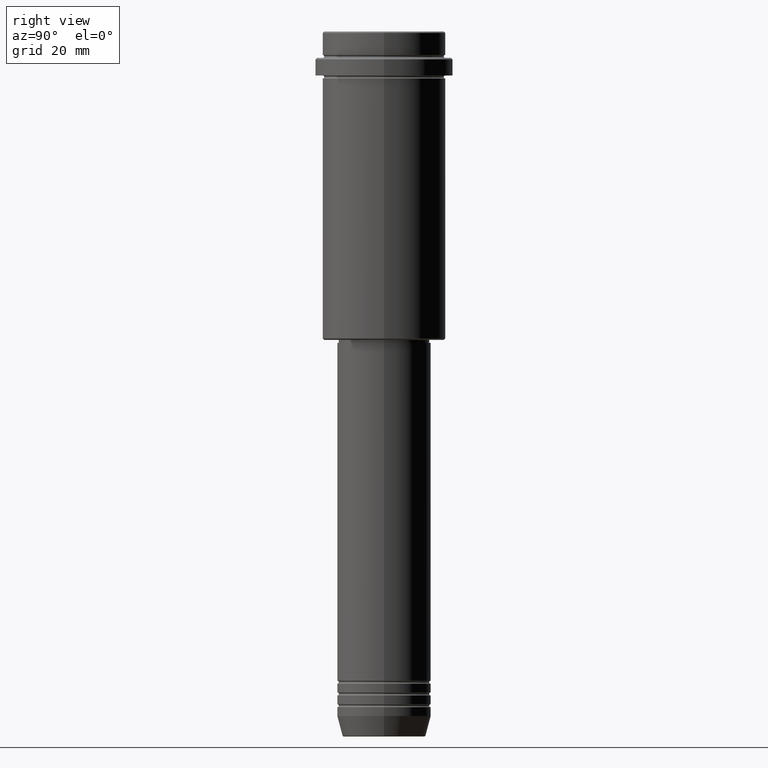
[diagram: clean part render]
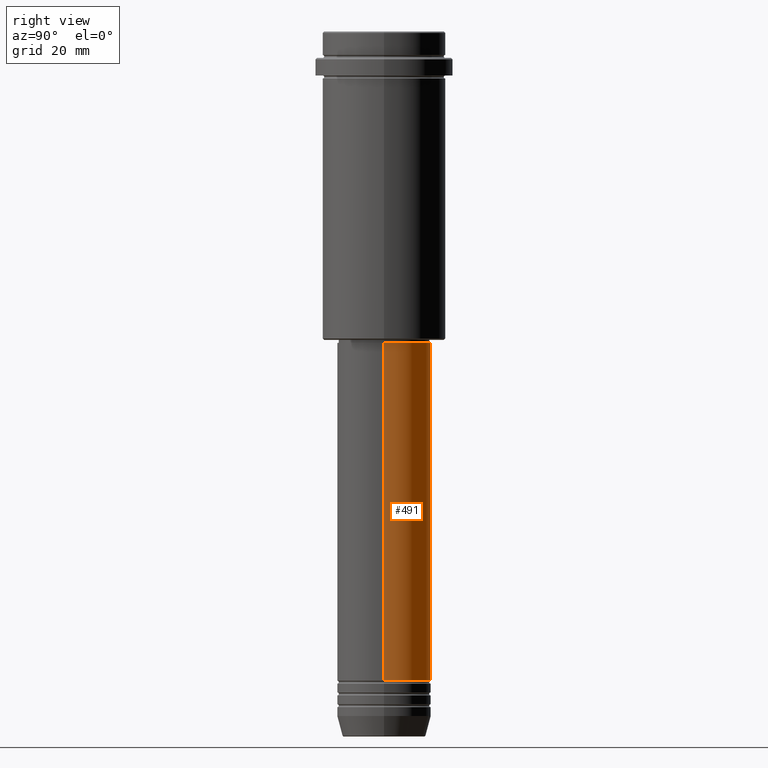
[diagram: same view with one face highlighted and labeled with its STEP entity id]
A machine part, right view. The second image highlights one B-rep face of the part: STEP entity #491.
In plain terms, the highlighted cylindrical surface (partial cylindrical patch) has radius 16 mm, axis along (-0, -0, 1).
Its self-contained STEP definition (entity closure, byte-faithful):
#23 = ORIENTED_EDGE ( 'NONE', *, *, #1107, .F. ) ;
#71 = VECTOR ( 'NONE', #544, 1000.000000000000000 ) ;
#76 = CARTESIAN_POINT ( 'NONE',  ( 16.00000000000000000, 0.000000000000000000, 0.000000000000000000 ) ) ;
#81 = CYLINDRICAL_SURFACE ( 'NONE', #949, 16.00000000000000000 ) ;
#82 = LINE ( 'NONE', #76, #1131 ) ;
#97 = CARTESIAN_POINT ( 'NONE',  ( -16.00000000000000000, 1.959434878635765131E-15, 0.000000000000000000 ) ) ;
#186 = AXIS2_PLACEMENT_3D ( 'NONE', #410, #838, #804 ) ;
#210 = DIRECTION ( 'NONE',  ( 1.000000000000000000, 0.000000000000000000, 0.000000000000000000 ) ) ;
#215 = DIRECTION ( 'NONE',  ( -0.000000000000000000, -0.000000000000000000, 1.000000000000000000 ) ) ;
#250 = EDGE_CURVE ( 'NONE', #640, #1078, #82, .T. ) ;
#263 = CARTESIAN_POINT ( 'NONE',  ( -16.00000000000000000, 1.959434878635765131E-15, -220.9999999999999432 ) ) ;
#316 = CARTESIAN_POINT ( 'NONE',  ( 0.000000000000000000, 0.000000000000000000, 0.000000000000000000 ) ) ;
#324 = VERTEX_POINT ( 'NONE', #1217 ) ;
#336 = ORIENTED_EDGE ( 'NONE', *, *, #890, .T. ) ;
#410 = CARTESIAN_POINT ( 'NONE',  ( 0.000000000000000000, 0.000000000000000000, -106.0000000000000142 ) ) ;
#447 = CARTESIAN_POINT ( 'NONE',  ( 0.000000000000000000, 0.000000000000000000, -220.9999999999999432 ) ) ;
#491 = ADVANCED_FACE ( 'NONE', ( #1305 ), #81, .T. ) ;
#544 = DIRECTION ( 'NONE',  ( -0.000000000000000000, -0.000000000000000000, 1.000000000000000000 ) ) ;
#592 = ORIENTED_EDGE ( 'NONE', *, *, #979, .T. ) ;
#624 = DIRECTION ( 'NONE',  ( -0.000000000000000000, -0.000000000000000000, 1.000000000000000000 ) ) ;
#634 = AXIS2_PLACEMENT_3D ( 'NONE', #447, #215, #210 ) ;
#640 = VERTEX_POINT ( 'NONE', #805 ) ;
#656 = CIRCLE ( 'NONE', #634, 16.00000000000000000 ) ;
#694 = VERTEX_POINT ( 'NONE', #263 ) ;
#734 = DIRECTION ( 'NONE',  ( -0.000000000000000000, -0.000000000000000000, 1.000000000000000000 ) ) ;
#804 = DIRECTION ( 'NONE',  ( 1.000000000000000000, 0.000000000000000000, 0.000000000000000000 ) ) ;
#805 = CARTESIAN_POINT ( 'NONE',  ( 16.00000000000000000, 0.000000000000000000, -220.9999999999999432 ) ) ;
#838 = DIRECTION ( 'NONE',  ( -0.000000000000000000, -0.000000000000000000, 1.000000000000000000 ) ) ;
#890 = EDGE_CURVE ( 'NONE', #694, #324, #1084, .T. ) ;
#925 = EDGE_LOOP ( 'NONE', ( #592, #336, #23, #1116 ) ) ;
#949 = AXIS2_PLACEMENT_3D ( 'NONE', #316, #624, #1058 ) ;
#979 = EDGE_CURVE ( 'NONE', #640, #694, #656, .T. ) ;
#1039 = CIRCLE ( 'NONE', #186, 16.00000000000000355 ) ;
#1058 = DIRECTION ( 'NONE',  ( 1.000000000000000000, 0.000000000000000000, 0.000000000000000000 ) ) ;
#1078 = VERTEX_POINT ( 'NONE', #1368 ) ;
#1084 = LINE ( 'NONE', #97, #71 ) ;
#1107 = EDGE_CURVE ( 'NONE', #1078, #324, #1039, .T. ) ;
#1116 = ORIENTED_EDGE ( 'NONE', *, *, #250, .F. ) ;
#1131 = VECTOR ( 'NONE', #734, 1000.000000000000000 ) ;
#1217 = CARTESIAN_POINT ( 'NONE',  ( -16.00000000000000355, 1.959434878635765526E-15, -106.0000000000000142 ) ) ;
#1305 = FACE_OUTER_BOUND ( 'NONE', #925, .T. ) ;
#1368 = CARTESIAN_POINT ( 'NONE',  ( 16.00000000000000355, 0.000000000000000000, -106.0000000000000142 ) ) ;